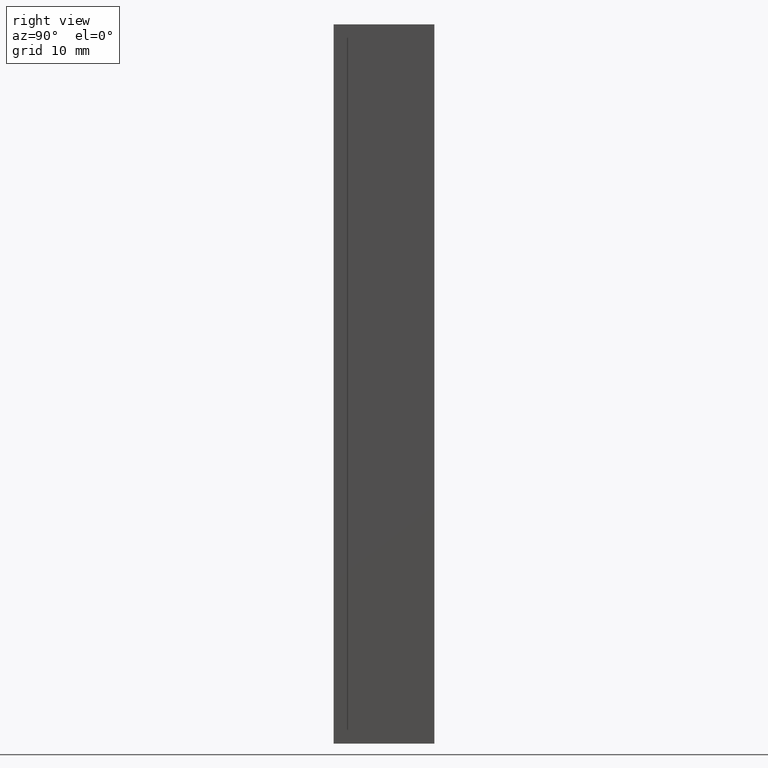
[diagram: clean part render]
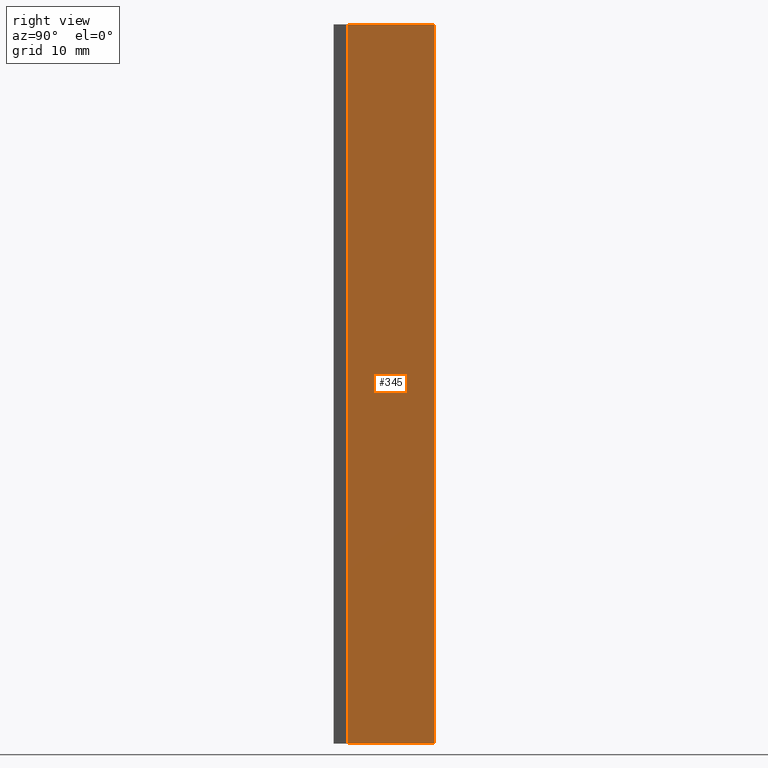
[diagram: same view with one face highlighted and labeled with its STEP entity id]
A machine part, right view. The second image highlights one B-rep face of the part: STEP entity #345.
In plain terms, the highlighted planar face has unit normal (1, 0, 0).
Its self-contained STEP definition (entity closure, byte-faithful):
#101=CARTESIAN_POINT('',(5.999999999999996,-12.000000000000004,-50.0));
#102=VERTEX_POINT('',#101);
#103=CARTESIAN_POINT('',(6.000000000000001,-2.220446E-015,-50.0));
#104=VERTEX_POINT('',#103);
#105=CARTESIAN_POINT('',(5.999999999999996,-12.000000000000004,-50.0));
#106=DIRECTION('',(0.0,1.0,0.0));
#107=VECTOR('',#106,12.000000000000002);
#108=LINE('',#105,#107);
#109=EDGE_CURVE('',#102,#104,#108,.T.);
#303=CARTESIAN_POINT('',(6.000000000000001,-2.220446E-015,50.0));
#304=VERTEX_POINT('',#303);
#311=CARTESIAN_POINT('',(6.000000000000001,-2.220446E-015,50.0));
#312=DIRECTION('',(0.0,0.0,-1.0));
#313=VECTOR('',#312,100.0);
#314=LINE('',#311,#313);
#315=EDGE_CURVE('',#304,#104,#314,.T.);
#322=CARTESIAN_POINT('',(6.000000000000001,-2.220446E-015,0.0));
#323=DIRECTION('',(1.0,0.0,0.0));
#324=DIRECTION('',(0.0,0.0,-1.0));
#325=AXIS2_PLACEMENT_3D('',#322,#323,#324);
#326=PLANE('',#325);
#327=CARTESIAN_POINT('',(5.999999999999996,-12.000000000000004,50.0));
#328=VERTEX_POINT('',#327);
#329=CARTESIAN_POINT('',(6.000000000000001,-2.220446E-015,50.0));
#330=DIRECTION('',(0.0,-1.0,0.0));
#331=VECTOR('',#330,12.000000000000002);
#332=LINE('',#329,#331);
#333=EDGE_CURVE('',#304,#328,#332,.T.);
#334=ORIENTED_EDGE('',*,*,#333,.T.);
#335=CARTESIAN_POINT('',(5.999999999999996,-12.000000000000004,-50.0));
#336=DIRECTION('',(0.0,0.0,1.0));
#337=VECTOR('',#336,100.0);
#338=LINE('',#335,#337);
#339=EDGE_CURVE('',#102,#328,#338,.T.);
#340=ORIENTED_EDGE('',*,*,#339,.F.);
#341=ORIENTED_EDGE('',*,*,#109,.T.);
#342=ORIENTED_EDGE('',*,*,#315,.F.);
#343=EDGE_LOOP('',(#334,#340,#341,#342));
#344=FACE_OUTER_BOUND('',#343,.T.);
#345=ADVANCED_FACE('',(#344),#326,.T.);